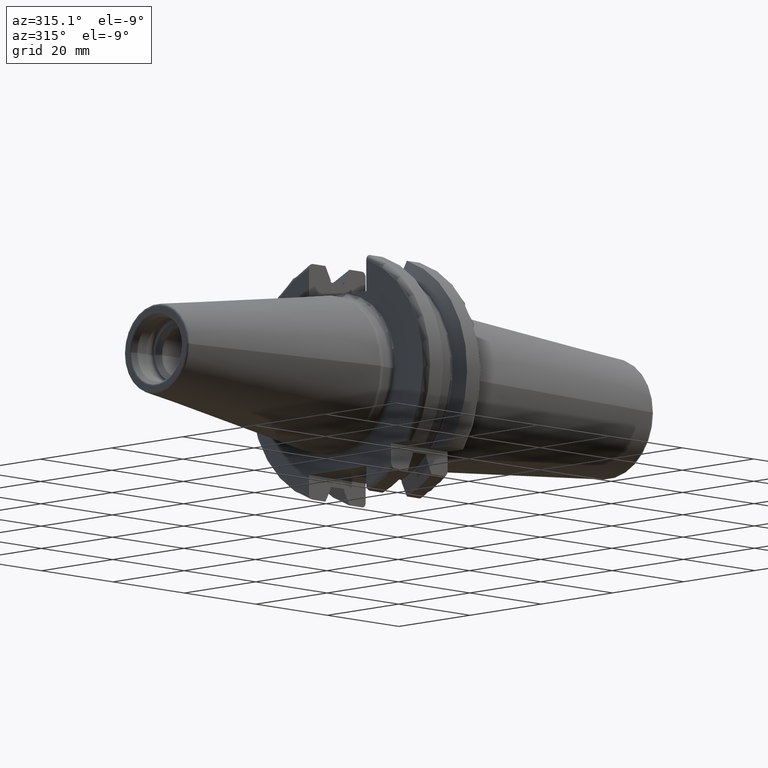
[diagram: clean part render]
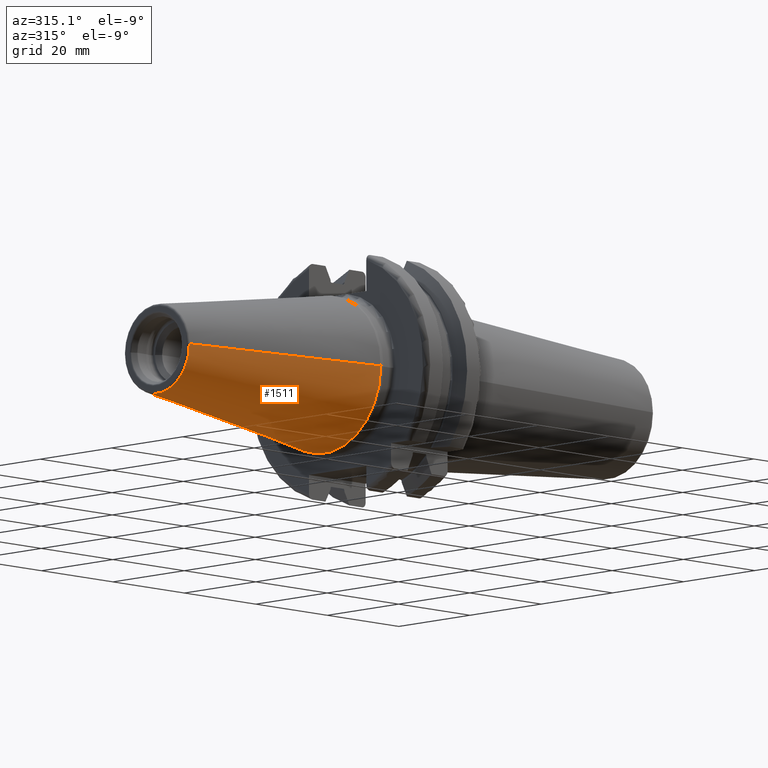
[diagram: same view with one face highlighted and labeled with its STEP entity id]
A machine part, auxiliary view. The second image highlights one B-rep face of the part: STEP entity #1511.
In plain terms, the highlighted conical surface has half-angle 8.298 deg.
Its self-contained STEP definition (entity closure, byte-faithful):
#32=CARTESIAN_POINT('',(-4.726494340113E1,0.E0,0.E0));
#33=DIRECTION('',(-1.E0,0.E0,0.E0));
#34=DIRECTION('',(0.E0,1.E0,0.E0));
#35=AXIS2_PLACEMENT_3D('',#32,#33,#34);
#47=DIRECTION('',(-9.895312636440E-1,-1.443186691705E-1,0.E0));
#48=VECTOR('',#47,4.727011948632E1);
#49=CARTESIAN_POINT('',(-4.896823332305E-1,1.580358204157E1,0.E0));
#50=LINE('',#49,#48);
#51=DIRECTION('',(-9.895312636440E-1,1.443186691705E-1,0.E0));
#52=VECTOR('',#51,4.727011948632E1);
#53=CARTESIAN_POINT('',(-4.896823332305E-1,-1.580358204157E1,0.E0));
#54=LINE('',#53,#52);
#55=CARTESIAN_POINT('',(-4.896823332305E-1,0.E0,0.E0));
#56=DIRECTION('',(-1.E0,0.E0,0.E0));
#57=DIRECTION('',(0.E0,1.E0,0.E0));
#58=AXIS2_PLACEMENT_3D('',#55,#56,#57);
#1183=CARTESIAN_POINT('',(-4.726494340113E1,8.981621305778E0,0.E0));
#1185=VERTEX_POINT('',#1183);
#1187=CARTESIAN_POINT('',(-4.726494340113E1,-8.981621305778E0,0.E0));
#1189=VERTEX_POINT('',#1187);
#1253=CARTESIAN_POINT('',(-4.896823332305E-1,1.580358204157E1,0.E0));
#1254=VERTEX_POINT('',#1253);
#1255=CARTESIAN_POINT('',(-4.896823332305E-1,-1.580358204157E1,0.E0));
#1256=VERTEX_POINT('',#1255);
#1499=CARTESIAN_POINT('',(-2.387731286718E1,0.E0,0.E0));
#1500=DIRECTION('',(1.E0,0.E0,0.E0));
#1501=DIRECTION('',(0.E0,-1.E0,0.E0));
#1502=AXIS2_PLACEMENT_3D('',#1499,#1500,#1501);
#1503=CONICAL_SURFACE('',#1502,1.239260167368E1,8.297826828206E0);
#1504=ORIENTED_EDGE('',*,*,#1489,.T.);
#1505=ORIENTED_EDGE('',*,*,#1466,.T.);
#1506=ORIENTED_EDGE('',*,*,#1493,.F.);
#1508=ORIENTED_EDGE('',*,*,#1507,.F.);
#1509=EDGE_LOOP('',(#1504,#1505,#1506,#1508));
#1510=FACE_OUTER_BOUND('',#1509,.F.);
#1511=ADVANCED_FACE('',(#1510),#1503,.T.);
#36=CIRCLE('',#35,8.981621305778E0);
#59=CIRCLE('',#58,1.580358204157E1);
#1466=EDGE_CURVE('',#1185,#1189,#36,.T.);
#1489=EDGE_CURVE('',#1254,#1185,#50,.T.);
#1493=EDGE_CURVE('',#1256,#1189,#54,.T.);
#1507=EDGE_CURVE('',#1254,#1256,#59,.T.);